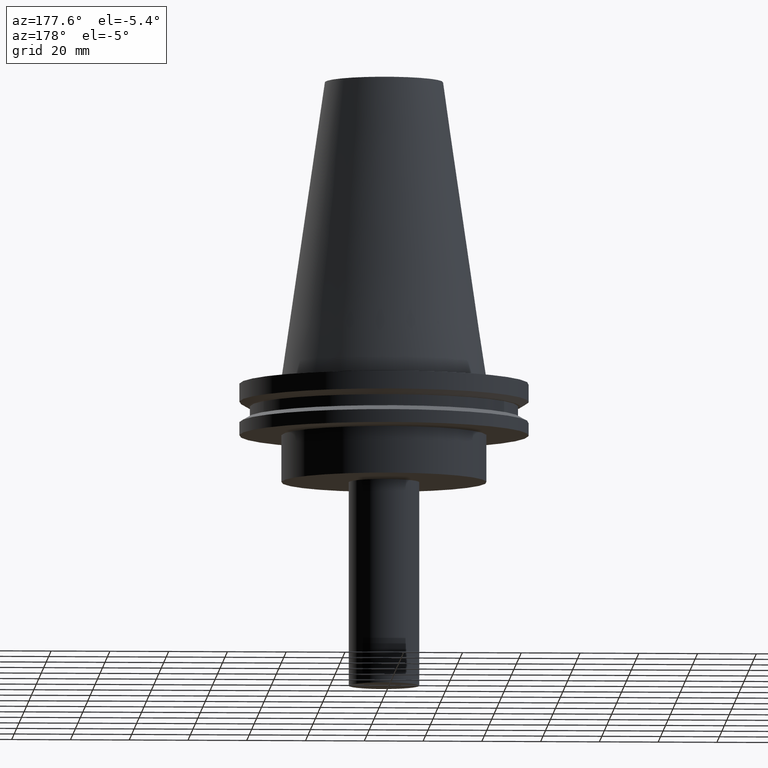
[diagram: clean part render]
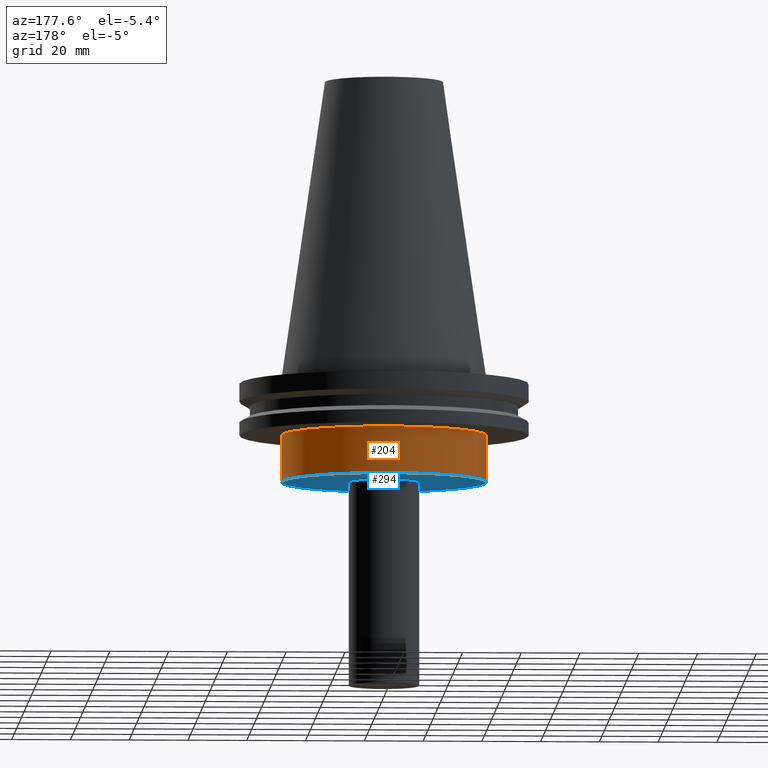
[diagram: same view with the hole feature highlighted: cylindrical wall and planar end face, labeled with their STEP entity ids]
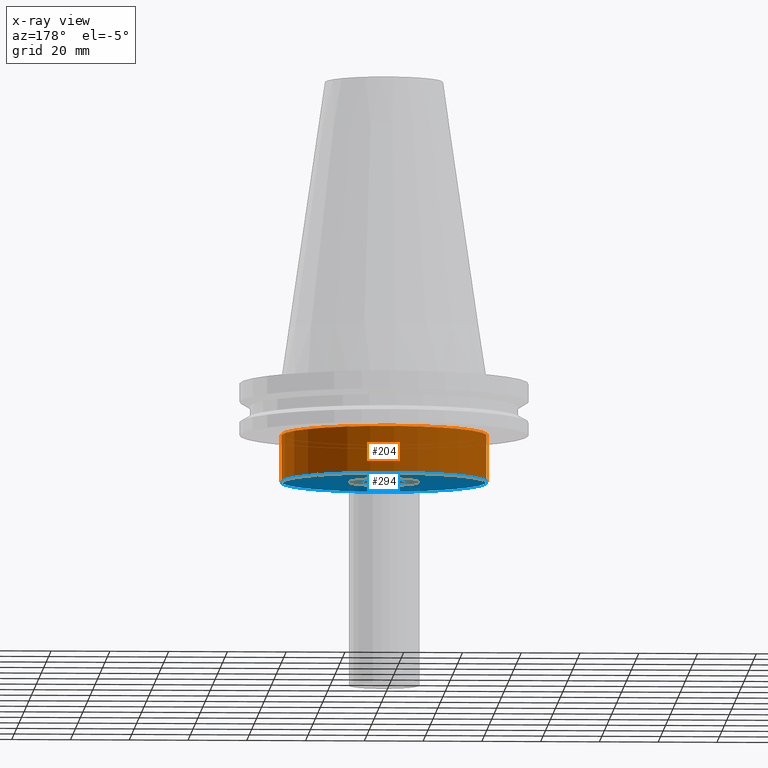
[diagram: x-ray of the same camera — body ghosted, the hole faces saturated]
A machine part, auxiliary view. The highlighted faces form one hole feature of diameter 69.85 mm: the cylindrical wall (entity #204, orange) and its adjacent planar end face (entity #294, blue) — they share a circular edge in the B-rep.
The next image is the same camera in x-ray (body ghosted, the hole faces saturated) — the bore reads through the body.
Wall:
#1 = EDGE_LOOP ( 'NONE', ( #60 ) ) ;
#44 = CARTESIAN_POINT ( 'NONE',  ( 0.000000000000000000, 0.000000000000000000, -35.00000000000000000 ) ) ;
#46 = CARTESIAN_POINT ( 'NONE',  ( 0.000000000000000000, 0.000000000000000000, 101.5999999999999943 ) ) ;
#49 = CARTESIAN_POINT ( 'NONE',  ( 0.000000000000000000, 0.000000000000000000, -19.04999999999999716 ) ) ;
#60 = ORIENTED_EDGE ( 'NONE', *, *, #361, .F. ) ;
#74 = CIRCLE ( 'NONE', #281, 34.92499999999999716 ) ;
#98 = EDGE_CURVE ( 'NONE', #234, #234, #74, .T. ) ;
#102 = DIRECTION ( 'NONE',  ( -0.000000000000000000, -0.000000000000000000, 1.000000000000000000 ) ) ;
#188 = CYLINDRICAL_SURFACE ( 'NONE', #268, 34.92499999999999716 ) ;
#190 = DIRECTION ( 'NONE',  ( -0.000000000000000000, -0.000000000000000000, 1.000000000000000000 ) ) ;
#204 = ADVANCED_FACE ( 'NONE', ( #345, #288 ), #188, .T. ) ;
#205 = CARTESIAN_POINT ( 'NONE',  ( 34.92499999999999716, 0.000000000000000000, -35.00000000000000000 ) ) ;
#217 = DIRECTION ( 'NONE',  ( 1.000000000000000000, 0.000000000000000000, 0.000000000000000000 ) ) ;
#232 = DIRECTION ( 'NONE',  ( 1.000000000000000000, 0.000000000000000000, 0.000000000000000000 ) ) ;
#234 = VERTEX_POINT ( 'NONE', #205 ) ;
#263 = AXIS2_PLACEMENT_3D ( 'NONE', #49, #293, #232 ) ;
#268 = AXIS2_PLACEMENT_3D ( 'NONE', #46, #102, #338 ) ;
#272 = ORIENTED_EDGE ( 'NONE', *, *, #98, .T. ) ;
#281 = AXIS2_PLACEMENT_3D ( 'NONE', #44, #190, #217 ) ;
#288 = FACE_OUTER_BOUND ( 'NONE', #389, .T. ) ;
#293 = DIRECTION ( 'NONE',  ( -0.000000000000000000, -0.000000000000000000, 1.000000000000000000 ) ) ;
#302 = CIRCLE ( 'NONE', #263, 34.92499999999999716 ) ;
#307 = CARTESIAN_POINT ( 'NONE',  ( 34.92499999999999716, 0.000000000000000000, -19.04999999999999716 ) ) ;
#334 = VERTEX_POINT ( 'NONE', #307 ) ;
#338 = DIRECTION ( 'NONE',  ( 1.000000000000000000, 0.000000000000000000, 0.000000000000000000 ) ) ;
#345 = FACE_OUTER_BOUND ( 'NONE', #1, .T. ) ;
#361 = EDGE_CURVE ( 'NONE', #334, #334, #302, .T. ) ;
#389 = EDGE_LOOP ( 'NONE', ( #272 ) ) ;
End face:
#44 = CARTESIAN_POINT ( 'NONE',  ( 0.000000000000000000, 0.000000000000000000, -35.00000000000000000 ) ) ;
#47 = DIRECTION ( 'NONE',  ( 1.000000000000000000, 0.000000000000000000, 0.000000000000000000 ) ) ;
#53 = FACE_BOUND ( 'NONE', #356, .T. ) ;
#70 = CARTESIAN_POINT ( 'NONE',  ( 0.000000000000000000, 0.000000000000000000, -35.00000000000000000 ) ) ;
#74 = CIRCLE ( 'NONE', #281, 34.92499999999999716 ) ;
#81 = AXIS2_PLACEMENT_3D ( 'NONE', #289, #348, #47 ) ;
#98 = EDGE_CURVE ( 'NONE', #234, #234, #74, .T. ) ;
#108 = DIRECTION ( 'NONE',  ( 1.000000000000000000, 0.000000000000000000, 0.000000000000000000 ) ) ;
#110 = DIRECTION ( 'NONE',  ( -0.000000000000000000, -0.000000000000000000, 1.000000000000000000 ) ) ;
#124 = EDGE_CURVE ( 'NONE', #326, #326, #262, .T. ) ;
#154 = ORIENTED_EDGE ( 'NONE', *, *, #124, .T. ) ;
#160 = AXIS2_PLACEMENT_3D ( 'NONE', #70, #110, #108 ) ;
#174 = CARTESIAN_POINT ( 'NONE',  ( 12.00000000000000000, 0.000000000000000000, -35.00000000000000000 ) ) ;
#190 = DIRECTION ( 'NONE',  ( -0.000000000000000000, -0.000000000000000000, 1.000000000000000000 ) ) ;
#205 = CARTESIAN_POINT ( 'NONE',  ( 34.92499999999999716, 0.000000000000000000, -35.00000000000000000 ) ) ;
#217 = DIRECTION ( 'NONE',  ( 1.000000000000000000, 0.000000000000000000, 0.000000000000000000 ) ) ;
#228 = PLANE ( 'NONE',  #81 ) ;
#234 = VERTEX_POINT ( 'NONE', #205 ) ;
#235 = ORIENTED_EDGE ( 'NONE', *, *, #98, .F. ) ;
#262 = CIRCLE ( 'NONE', #160, 12.00000000000000000 ) ;
#281 = AXIS2_PLACEMENT_3D ( 'NONE', #44, #190, #217 ) ;
#289 = CARTESIAN_POINT ( 'NONE',  ( 0.000000000000000000, 34.92499999999999716, -35.00000000000000000 ) ) ;
#294 = ADVANCED_FACE ( 'NONE', ( #53, #347 ), #228, .F. ) ;
#326 = VERTEX_POINT ( 'NONE', #174 ) ;
#327 = EDGE_LOOP ( 'NONE', ( #235 ) ) ;
#347 = FACE_OUTER_BOUND ( 'NONE', #327, .T. ) ;
#348 = DIRECTION ( 'NONE',  ( 0.000000000000000000, -0.000000000000000000, 1.000000000000000000 ) ) ;
#356 = EDGE_LOOP ( 'NONE', ( #154 ) ) ;